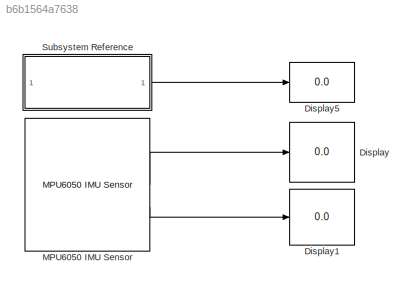
MODEL slx_b6b1564a7638
KIND model
CONFIG AbsTol = auto
CONFIG EnableMultiTasking = on
CONFIG FixedStep = auto
CONFIG MaxStep = auto
CONFIG MinStep = auto
CONFIG RelTol = 1e-3
CONFIG SampleTimeConstraint = Unconstrained
CONFIG SolverName = FixedStepAuto
CONFIG StartTime = 0.0
CONFIG StopTime = inf
BLOCK [Display] Display
  Decimation = 1
BLOCK [Display] Display1
  Decimation = 1
BLOCK [Display] Display5
  Decimation = 1
BLOCK [Reference] MPU6050 IMU Sensor  REF=arduinosensorlib/MPU6050 IMU Sensor
  SourceBlock = arduinosensorlib/MPU6050 IMU Sensor
  SourceType = MPU6050
BLOCK [SubSystem] Subsystem Reference
  ReferencedSubsystem = Sub_Laser
LINE MPU6050 IMU Sensor:1 -> Display:1
LINE MPU6050 IMU Sensor:2 -> Display1:1
LINE Subsystem Reference:1 -> Display5:1
